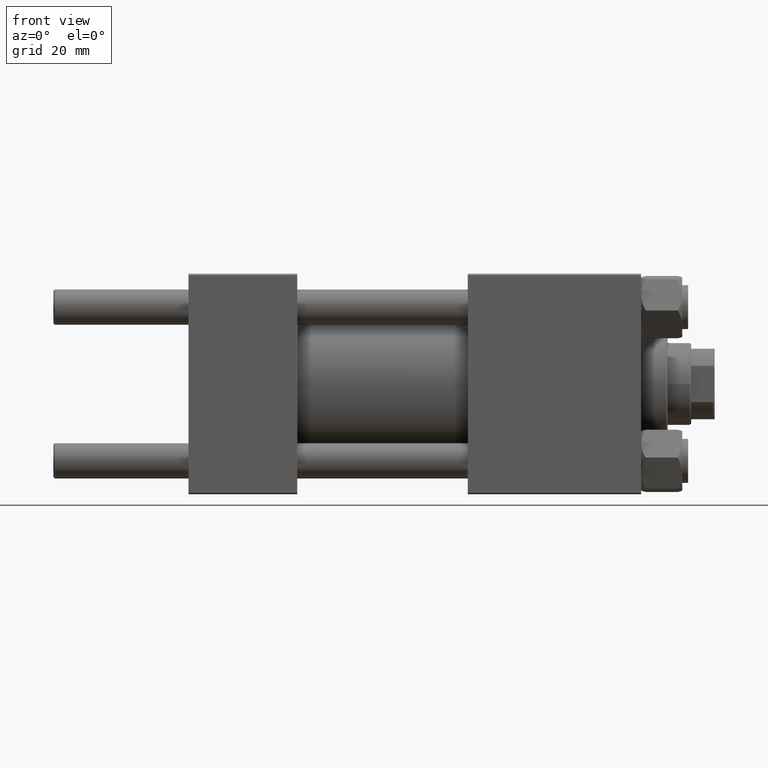
[diagram: clean part render]
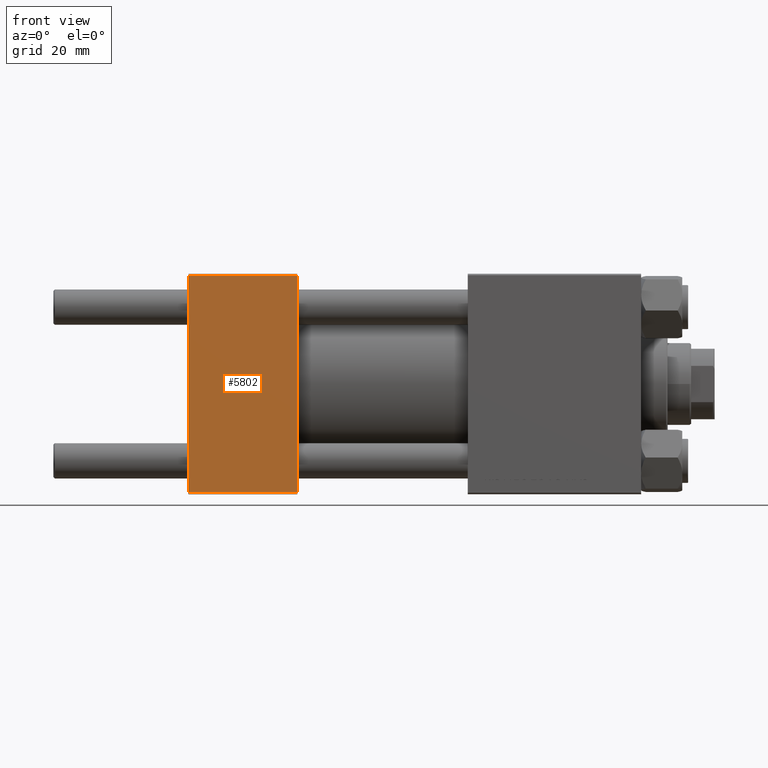
[diagram: same view with one face highlighted and labeled with its STEP entity id]
A machine part, front view. The second image highlights one B-rep face of the part: STEP entity #5802.
In plain terms, the highlighted planar face has unit normal (0, 1, 0).
Its self-contained STEP definition (entity closure, byte-faithful):
#2025 = CARTESIAN_POINT ( 'NONE',  ( 0.000000000000000000, -37.50000000000000711, 37.49999999999999289 ) ) ;
#2362 = ORIENTED_EDGE ( 'NONE', *, *, #10986, .F. ) ;
#2553 = DIRECTION ( 'NONE',  ( -1.000000000000000000, 0.000000000000000000, 0.000000000000000000 ) ) ;
#4355 = DIRECTION ( 'NONE',  ( 0.000000000000000000, 9.251858538542971581E-17, -1.000000000000000000 ) ) ;
#4374 = DIRECTION ( 'NONE',  ( 0.000000000000000000, -9.251858538542971581E-17, 1.000000000000000000 ) ) ;
#4875 = DIRECTION ( 'NONE',  ( -0.000000000000000000, 1.000000000000000000, 9.251858538542971581E-17 ) ) ;
#5802 = ADVANCED_FACE ( 'NONE', ( #25854 ), #37708, .F. ) ;
#6334 = DIRECTION ( 'NONE',  ( 0.000000000000000000, 9.251858538542971581E-17, -1.000000000000000000 ) ) ;
#8133 = ORIENTED_EDGE ( 'NONE', *, *, #13268, .T. ) ;
#10432 = VERTEX_POINT ( 'NONE', #47847 ) ;
#10478 = CARTESIAN_POINT ( 'NONE',  ( 37.00000000000000000, -37.50000000000000711, 37.49999999999999289 ) ) ;
#10986 = EDGE_CURVE ( 'NONE', #10432, #34824, #27333, .T. ) ;
#13268 = EDGE_CURVE ( 'NONE', #17838, #34824, #30926, .T. ) ;
#14997 = CARTESIAN_POINT ( 'NONE',  ( 37.00000000000000000, -37.50000000000000711, 37.49999999999999289 ) ) ;
#15101 = ORIENTED_EDGE ( 'NONE', *, *, #29770, .T. ) ;
#17540 = ORIENTED_EDGE ( 'NONE', *, *, #45991, .T. ) ;
#17838 = VERTEX_POINT ( 'NONE', #36406 ) ;
#18042 = VECTOR ( 'NONE', #6334, 1000.000000000000000 ) ;
#19086 = DIRECTION ( 'NONE',  ( 1.000000000000000000, 0.000000000000000000, 0.000000000000000000 ) ) ;
#21073 = CARTESIAN_POINT ( 'NONE',  ( 0.000000000000000000, -37.50000000000000711, 36.99999999999999289 ) ) ;
#21918 = CARTESIAN_POINT ( 'NONE',  ( 37.00000000000000000, -37.50000000000000000, -37.00000000000003553 ) ) ;
#22213 = LINE ( 'NONE', #2025, #18042 ) ;
#25160 = VERTEX_POINT ( 'NONE', #21073 ) ;
#25281 = AXIS2_PLACEMENT_3D ( 'NONE', #10478, #4875, #4374 ) ;
#25854 = FACE_OUTER_BOUND ( 'NONE', #48017, .T. ) ;
#26532 = VECTOR ( 'NONE', #2553, 1000.000000000000000 ) ;
#27333 = LINE ( 'NONE', #14997, #46398 ) ;
#29770 = EDGE_CURVE ( 'NONE', #10432, #25160, #29810, .T. ) ;
#29810 = LINE ( 'NONE', #48974, #26532 ) ;
#30926 = LINE ( 'NONE', #21918, #49705 ) ;
#34824 = VERTEX_POINT ( 'NONE', #39786 ) ;
#36406 = CARTESIAN_POINT ( 'NONE',  ( 0.000000000000000000, -37.50000000000000000, -37.00000000000003553 ) ) ;
#37708 = PLANE ( 'NONE',  #25281 ) ;
#39786 = CARTESIAN_POINT ( 'NONE',  ( 37.00000000000000000, -37.50000000000000000, -37.00000000000003553 ) ) ;
#45991 = EDGE_CURVE ( 'NONE', #25160, #17838, #22213, .T. ) ;
#46398 = VECTOR ( 'NONE', #4355, 1000.000000000000000 ) ;
#47847 = CARTESIAN_POINT ( 'NONE',  ( 37.00000000000000000, -37.50000000000000711, 36.99999999999999289 ) ) ;
#48017 = EDGE_LOOP ( 'NONE', ( #17540, #8133, #2362, #15101 ) ) ;
#48974 = CARTESIAN_POINT ( 'NONE',  ( 37.00000000000000000, -37.50000000000000711, 36.99999999999999289 ) ) ;
#49705 = VECTOR ( 'NONE', #19086, 1000.000000000000000 ) ;